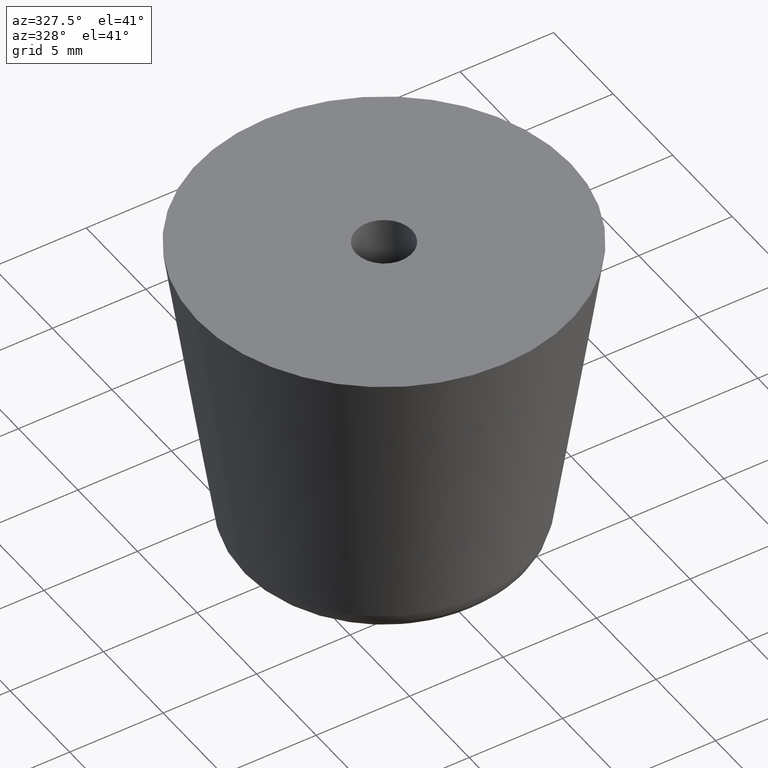
[diagram: clean part render]
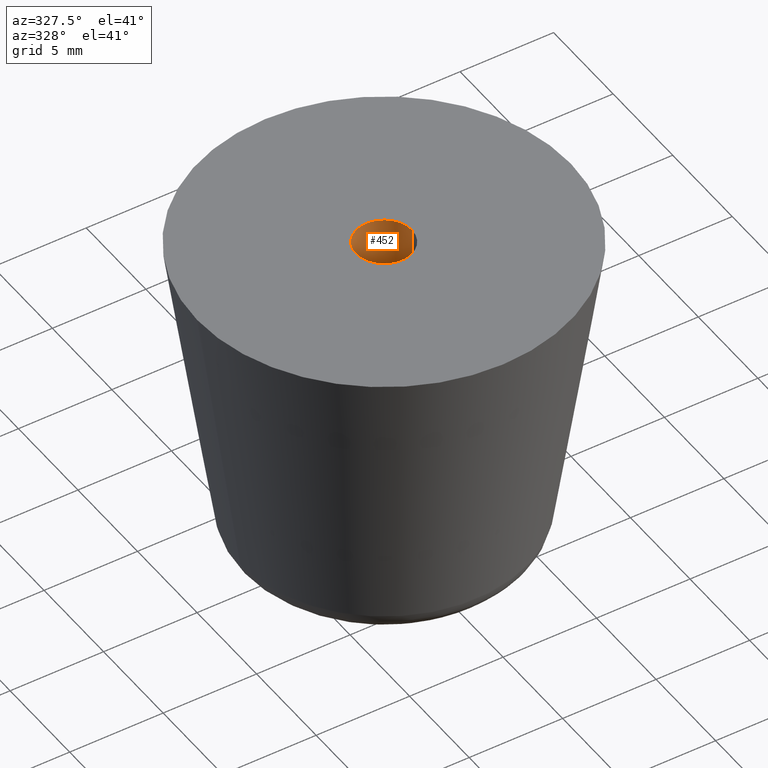
[diagram: same view with one face highlighted and labeled with its STEP entity id]
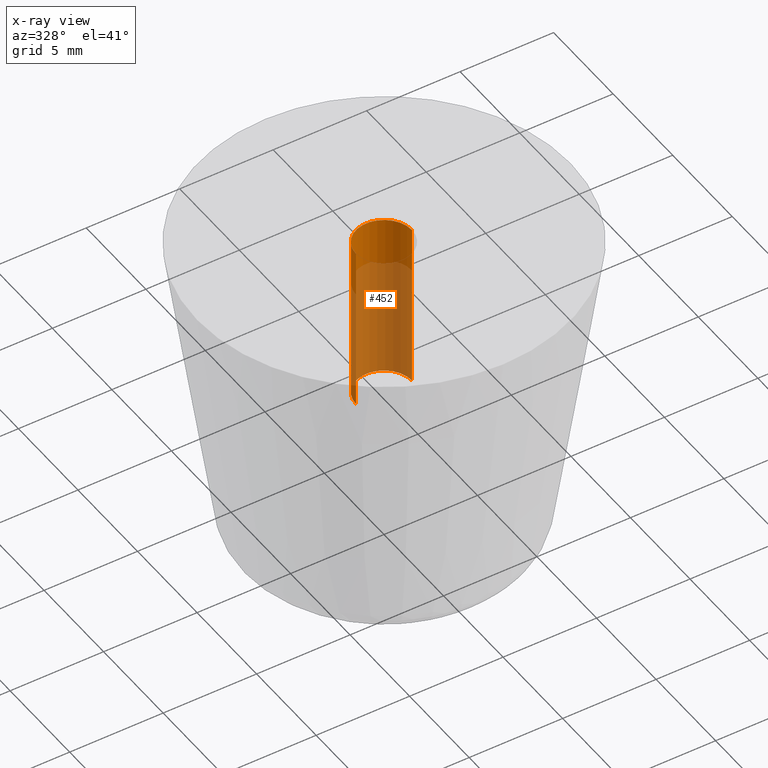
[diagram: x-ray of the same camera — body ghosted, the highlighted face saturated]
A machine part, auxiliary view. The second image highlights one B-rep face of the part: STEP entity #452.
The next image is the same camera in x-ray: the body ghosted, the highlighted face saturated — about 72% of this face is hidden behind the body in this view.
In plain terms, the highlighted cylindrical surface (edge-blend (fillet) strip) has radius 1.5 mm, axis along (0, 0, -1).
Its self-contained STEP definition (entity closure, byte-faithful):
#13 = DIRECTION ( 'NONE',  ( -1.000000000000000000, 0.0000000000000000000, 0.0000000000000000000 ) ) ;
#38 = ORIENTED_EDGE ( 'NONE', *, *, #494, .T. ) ;
#49 = CYLINDRICAL_SURFACE ( 'NONE', #279, 1.500000000000000000 ) ;
#77 = AXIS2_PLACEMENT_3D ( 'NONE', #621, #258, #674 ) ;
#82 = VECTOR ( 'NONE', #564, 1000.000000000000000 ) ;
#154 = ORIENTED_EDGE ( 'NONE', *, *, #394, .F. ) ;
#157 = LINE ( 'NONE', #379, #82 ) ;
#218 = CARTESIAN_POINT ( 'NONE',  ( 1.500000000000000000, 1.836970198721029900E-016, 17.00000000000000000 ) ) ;
#229 = DIRECTION ( 'NONE',  ( 0.0000000000000000000, 0.0000000000000000000, -1.000000000000000000 ) ) ;
#233 = CARTESIAN_POINT ( 'NONE',  ( 1.500000000000000000, 1.836970198721029900E-016, 0.0000000000000000000 ) ) ;
#241 = CARTESIAN_POINT ( 'NONE',  ( 0.0000000000000000000, 0.0000000000000000000, 0.0000000000000000000 ) ) ;
#258 = DIRECTION ( 'NONE',  ( 0.0000000000000000000, 0.0000000000000000000, -1.000000000000000000 ) ) ;
#266 = CARTESIAN_POINT ( 'NONE',  ( 0.0000000000000000000, 0.0000000000000000000, 17.00000000000000000 ) ) ;
#279 = AXIS2_PLACEMENT_3D ( 'NONE', #241, #663, #13 ) ;
#329 = DIRECTION ( 'NONE',  ( -1.000000000000000000, 0.0000000000000000000, 0.0000000000000000000 ) ) ;
#330 = EDGE_CURVE ( 'NONE', #761, #657, #690, .T. ) ;
#350 = EDGE_LOOP ( 'NONE', ( #154, #634, #38, #739 ) ) ;
#363 = EDGE_CURVE ( 'NONE', #613, #472, #522, .T. ) ;
#379 = CARTESIAN_POINT ( 'NONE',  ( -1.500000000000000000, 0.0000000000000000000, 0.0000000000000000000 ) ) ;
#394 = EDGE_CURVE ( 'NONE', #657, #472, #562, .T. ) ;
#399 = VECTOR ( 'NONE', #229, 1000.000000000000000 ) ;
#452 = ADVANCED_FACE ( 'NONE', ( #550 ), #49, .F. ) ;
#472 = VERTEX_POINT ( 'NONE', #583 ) ;
#494 = EDGE_CURVE ( 'NONE', #761, #613, #157, .T. ) ;
#522 = CIRCLE ( 'NONE', #77, 1.500000000000000000 ) ;
#542 = CARTESIAN_POINT ( 'NONE',  ( -1.500000000000000000, 0.0000000000000000000, 17.00000000000000000 ) ) ;
#550 = FACE_OUTER_BOUND ( 'NONE', #350, .T. ) ;
#562 = LINE ( 'NONE', #233, #399 ) ;
#564 = DIRECTION ( 'NONE',  ( 0.0000000000000000000, 0.0000000000000000000, -1.000000000000000000 ) ) ;
#583 = CARTESIAN_POINT ( 'NONE',  ( 1.500000000000000000, 1.836970198721029900E-016, 7.999999999999899600 ) ) ;
#608 = CARTESIAN_POINT ( 'NONE',  ( -1.500000000000000000, 0.0000000000000000000, 7.999999999999899600 ) ) ;
#613 = VERTEX_POINT ( 'NONE', #608 ) ;
#621 = CARTESIAN_POINT ( 'NONE',  ( 0.0000000000000000000, 0.0000000000000000000, 7.999999999999899600 ) ) ;
#634 = ORIENTED_EDGE ( 'NONE', *, *, #330, .F. ) ;
#657 = VERTEX_POINT ( 'NONE', #218 ) ;
#663 = DIRECTION ( 'NONE',  ( 0.0000000000000000000, 0.0000000000000000000, -1.000000000000000000 ) ) ;
#674 = DIRECTION ( 'NONE',  ( -1.000000000000000000, 0.0000000000000000000, 0.0000000000000000000 ) ) ;
#678 = DIRECTION ( 'NONE',  ( 0.0000000000000000000, 0.0000000000000000000, -1.000000000000000000 ) ) ;
#690 = CIRCLE ( 'NONE', #696, 1.500000000000000000 ) ;
#696 = AXIS2_PLACEMENT_3D ( 'NONE', #266, #678, #329 ) ;
#739 = ORIENTED_EDGE ( 'NONE', *, *, #363, .T. ) ;
#761 = VERTEX_POINT ( 'NONE', #542 ) ;